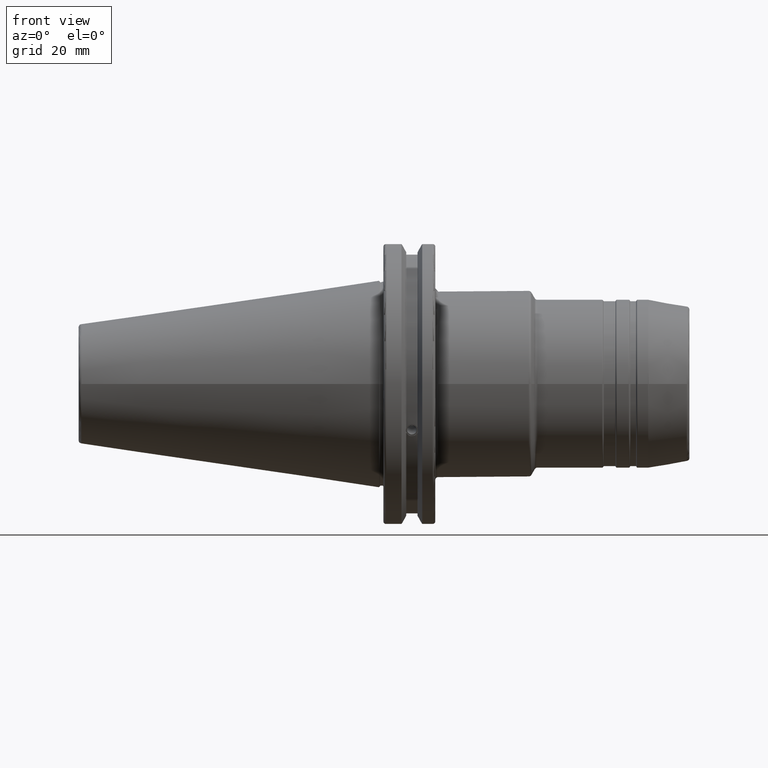
[diagram: clean part render]
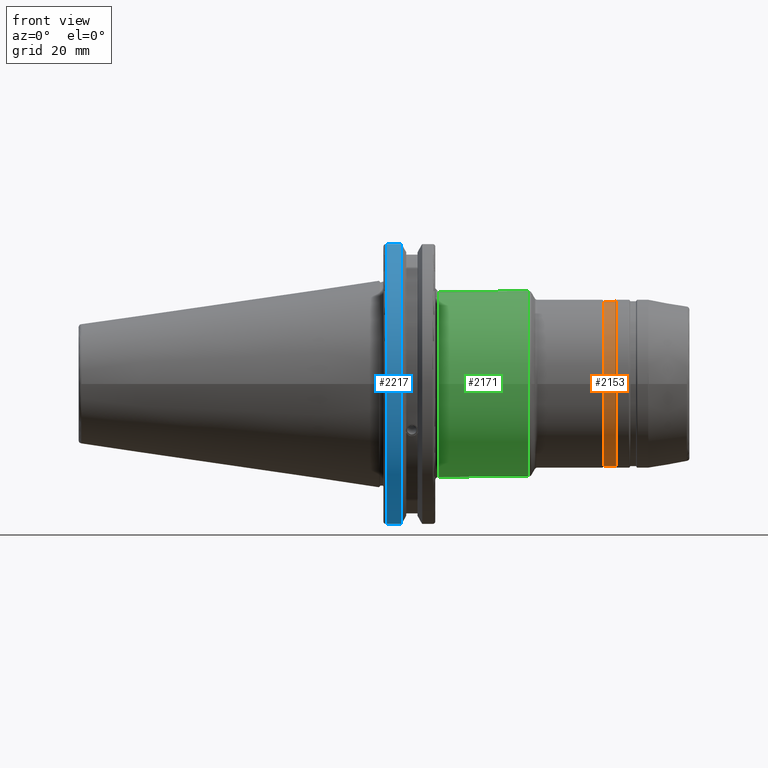
[diagram: same view with three faces highlighted in distinct colors, each labeled with its STEP entity id]
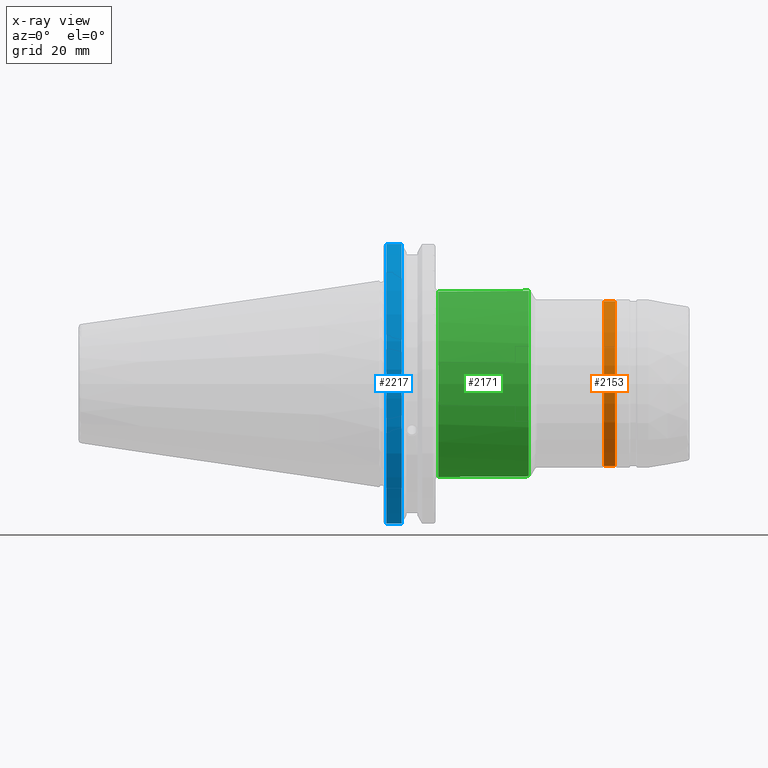
[diagram: x-ray of the same camera — body ghosted, the three highlighted faces saturated]
A machine part, front view with three faces highlighted in distinct colors.
The next image is the same camera in x-ray (body ghosted, the three faces saturated) — at least one of them is partly hidden behind the body in this view.
Their STEP definitions:

[orange] entity #2153 — the highlighted cylindrical surface (bore or boss wall) has radius 28 mm, axis along (1, 0, 0).
#154=LINE('',#3342,#260);
#260=VECTOR('',#2648,28.);
#364=CYLINDRICAL_SURFACE('',#2310,28.);
#402=FACE_OUTER_BOUND('',#512,.T.);
#512=EDGE_LOOP('',(#1472,#1473,#1474,#1475,#1476,#1477,#1478,#1479));
#654=CIRCLE('',#2303,28.);
#659=CIRCLE('',#2308,28.);
#660=CIRCLE('',#2309,28.);
#661=CIRCLE('',#2311,28.);
#662=CIRCLE('',#2312,28.);
#663=CIRCLE('',#2313,28.);
#838=VERTEX_POINT('',#3327);
#839=VERTEX_POINT('',#3328);
#843=VERTEX_POINT('',#3337);
#844=VERTEX_POINT('',#3341);
#845=VERTEX_POINT('',#3343);
#846=VERTEX_POINT('',#3345);
#1095=EDGE_CURVE('',#838,#839,#654,.T.);
#1100=EDGE_CURVE('',#839,#843,#659,.T.);
#1101=EDGE_CURVE('',#843,#838,#660,.T.);
#1102=EDGE_CURVE('',#843,#844,#154,.T.);
#1103=EDGE_CURVE('',#845,#844,#661,.T.);
#1104=EDGE_CURVE('',#846,#845,#662,.T.);
#1105=EDGE_CURVE('',#844,#846,#663,.T.);
#1472=ORIENTED_EDGE('',*,*,#1095,.F.);
#1473=ORIENTED_EDGE('',*,*,#1101,.F.);
#1474=ORIENTED_EDGE('',*,*,#1102,.T.);
#1475=ORIENTED_EDGE('',*,*,#1103,.F.);
#1476=ORIENTED_EDGE('',*,*,#1104,.F.);
#1477=ORIENTED_EDGE('',*,*,#1105,.F.);
#1478=ORIENTED_EDGE('',*,*,#1102,.F.);
#1479=ORIENTED_EDGE('',*,*,#1100,.F.);
#2153=ADVANCED_FACE('',(#402),#364,.T.);
#2303=AXIS2_PLACEMENT_3D('',#3329,#2632,#2633);
#2308=AXIS2_PLACEMENT_3D('',#3338,#2642,#2643);
#2309=AXIS2_PLACEMENT_3D('',#3339,#2644,#2645);
#2310=AXIS2_PLACEMENT_3D('',#3340,#2646,#2647);
#2311=AXIS2_PLACEMENT_3D('',#3344,#2649,#2650);
#2312=AXIS2_PLACEMENT_3D('',#3346,#2651,#2652);
#2313=AXIS2_PLACEMENT_3D('',#3347,#2653,#2654);
#2632=DIRECTION('center_axis',(1.,0.,0.));
#2633=DIRECTION('ref_axis',(0.,-1.,1.83697019872103E-16));
#2642=DIRECTION('center_axis',(1.,0.,0.));
#2643=DIRECTION('ref_axis',(0.,-1.,1.83697019872103E-16));
#2644=DIRECTION('center_axis',(1.,0.,0.));
#2645=DIRECTION('ref_axis',(0.,-1.,1.83697019872103E-16));
#2646=DIRECTION('center_axis',(1.,0.,0.));
#2647=DIRECTION('ref_axis',(0.,1.,0.));
#2648=DIRECTION('',(-1.,0.,0.));
#2649=DIRECTION('center_axis',(-1.,0.,0.));
#2650=DIRECTION('ref_axis',(0.,-1.,1.83697019872103E-16));
#2651=DIRECTION('center_axis',(-1.,0.,0.));
#2652=DIRECTION('ref_axis',(0.,-1.,1.83697019872103E-16));
#2653=DIRECTION('center_axis',(-1.,0.,0.));
#2654=DIRECTION('ref_axis',(0.,-1.,1.83697019872103E-16));
#3327=CARTESIAN_POINT('',(79.8845299461621,28.,-1.7145055188063E-15));
#3328=CARTESIAN_POINT('',(79.8845299461621,-3.42901103761259E-15,28.));
#3329=CARTESIAN_POINT('Origin',(79.8845299461621,0.,0.));
#3337=CARTESIAN_POINT('',(79.8845299461621,-28.,-3.42901103761259E-15));
#3338=CARTESIAN_POINT('Origin',(79.8845299461621,0.,0.));
#3339=CARTESIAN_POINT('Origin',(79.8845299461621,0.,0.));
#3340=CARTESIAN_POINT('Origin',(78.,0.,0.));
#3341=CARTESIAN_POINT('',(76.1154700538379,-28.,-3.42901103761259E-15));
#3342=CARTESIAN_POINT('',(78.,-28.,-3.42901103761259E-15));
#3343=CARTESIAN_POINT('',(76.1154700538379,28.,-8.57252759403147E-15));
#3344=CARTESIAN_POINT('Origin',(76.1154700538379,0.,0.));
#3345=CARTESIAN_POINT('',(76.1154700538379,-3.42901103761259E-15,28.));
#3346=CARTESIAN_POINT('Origin',(76.1154700538379,0.,0.));
#3347=CARTESIAN_POINT('Origin',(76.1154700538379,0.,0.));

[blue] entity #2217 — the highlighted cylindrical surface (partial cylindrical patch) has radius 49.2125 mm, axis along (1, 0, 0).
#224=LINE('',#4279,#330);
#225=LINE('',#4285,#331);
#330=VECTOR('',#3090,10.);
#331=VECTOR('',#3093,10.);
#387=CYLINDRICAL_SURFACE('',#2497,49.2125);
#466=FACE_OUTER_BOUND('',#588,.T.);
#588=EDGE_LOOP('',(#1912,#1913,#1914,#1915));
#780=CIRCLE('',#2494,49.2125);
#782=CIRCLE('',#2498,49.2125);
#1025=VERTEX_POINT('',#4257);
#1026=VERTEX_POINT('',#4266);
#1027=VERTEX_POINT('',#4278);
#1028=VERTEX_POINT('',#4284);
#1341=EDGE_CURVE('',#1025,#1026,#780,.T.);
#1344=EDGE_CURVE('',#1026,#1027,#224,.T.);
#1346=EDGE_CURVE('',#1028,#1025,#225,.T.);
#1347=EDGE_CURVE('',#1027,#1028,#782,.T.);
#1912=ORIENTED_EDGE('',*,*,#1341,.F.);
#1913=ORIENTED_EDGE('',*,*,#1346,.F.);
#1914=ORIENTED_EDGE('',*,*,#1347,.F.);
#1915=ORIENTED_EDGE('',*,*,#1344,.F.);
#2217=ADVANCED_FACE('',(#466),#387,.T.);
#2494=AXIS2_PLACEMENT_3D('',#4267,#3084,#3085);
#2497=AXIS2_PLACEMENT_3D('',#4283,#3091,#3092);
#2498=AXIS2_PLACEMENT_3D('',#4286,#3094,#3095);
#3084=DIRECTION('center_axis',(-1.,0.,0.));
#3085=DIRECTION('ref_axis',(0.,-1.,1.60812264967664E-16));
#3090=DIRECTION('',(1.,0.,0.));
#3091=DIRECTION('center_axis',(1.,0.,0.));
#3092=DIRECTION('ref_axis',(0.,-1.,1.22464679914735E-16));
#3093=DIRECTION('',(-1.,0.,0.));
#3094=DIRECTION('center_axis',(1.,0.,0.));
#3095=DIRECTION('ref_axis',(0.,0.,-1.));
#4257=CARTESIAN_POINT('',(2.5,-13.4317035994433,-47.3440544806494));
#4266=CARTESIAN_POINT('',(2.5,-13.4317035994433,47.3440544806494));
#4267=CARTESIAN_POINT('Origin',(2.5,0.,0.));
#4278=CARTESIAN_POINT('',(7.60799096595127,-13.4317035994433,47.3440544806494));
#4279=CARTESIAN_POINT('',(4.55399548297564,-13.4317035994433,47.3440544806494));
#4283=CARTESIAN_POINT('Origin',(4.55399548297564,0.,0.));
#4284=CARTESIAN_POINT('',(7.60799096595127,-13.4317035994433,-47.3440544806494));
#4285=CARTESIAN_POINT('',(4.55399548297564,-13.4317035994433,-47.3440544806494));
#4286=CARTESIAN_POINT('Origin',(7.60799096595127,0.,0.));

[green] entity #2171 — the highlighted cylindrical surface (bore or boss wall) has radius 31.5 mm, axis along (1, 0, 0).
#162=LINE('',#3475,#268);
#268=VECTOR('',#2808,31.5);
#368=CYLINDRICAL_SURFACE('',#2386,31.5);
#420=FACE_OUTER_BOUND('',#531,.T.);
#531=EDGE_LOOP('',(#1611,#1612,#1613,#1614,#1615,#1616,#1617,#1618));
#716=CIRCLE('',#2383,31.5);
#717=CIRCLE('',#2384,31.5);
#718=CIRCLE('',#2385,31.5);
#719=CIRCLE('',#2387,31.5);
#720=CIRCLE('',#2388,31.5);
#721=CIRCLE('',#2389,31.5);
#890=VERTEX_POINT('',#3466);
#891=VERTEX_POINT('',#3468);
#892=VERTEX_POINT('',#3470);
#893=VERTEX_POINT('',#3474);
#894=VERTEX_POINT('',#3476);
#895=VERTEX_POINT('',#3478);
#1165=EDGE_CURVE('',#890,#891,#716,.T.);
#1166=EDGE_CURVE('',#891,#892,#717,.T.);
#1167=EDGE_CURVE('',#892,#890,#718,.T.);
#1168=EDGE_CURVE('',#891,#893,#162,.T.);
#1169=EDGE_CURVE('',#894,#893,#719,.T.);
#1170=EDGE_CURVE('',#895,#894,#720,.T.);
#1171=EDGE_CURVE('',#893,#895,#721,.T.);
#1611=ORIENTED_EDGE('',*,*,#1167,.F.);
#1612=ORIENTED_EDGE('',*,*,#1166,.F.);
#1613=ORIENTED_EDGE('',*,*,#1168,.T.);
#1614=ORIENTED_EDGE('',*,*,#1169,.F.);
#1615=ORIENTED_EDGE('',*,*,#1170,.F.);
#1616=ORIENTED_EDGE('',*,*,#1171,.F.);
#1617=ORIENTED_EDGE('',*,*,#1168,.F.);
#1618=ORIENTED_EDGE('',*,*,#1165,.F.);
#2171=ADVANCED_FACE('',(#420),#368,.T.);
#2383=AXIS2_PLACEMENT_3D('',#3469,#2800,#2801);
#2384=AXIS2_PLACEMENT_3D('',#3471,#2802,#2803);
#2385=AXIS2_PLACEMENT_3D('',#3472,#2804,#2805);
#2386=AXIS2_PLACEMENT_3D('',#3473,#2806,#2807);
#2387=AXIS2_PLACEMENT_3D('',#3477,#2809,#2810);
#2388=AXIS2_PLACEMENT_3D('',#3479,#2811,#2812);
#2389=AXIS2_PLACEMENT_3D('',#3480,#2813,#2814);
#2800=DIRECTION('center_axis',(1.,0.,0.));
#2801=DIRECTION('ref_axis',(0.,-1.,1.83697019872103E-16));
#2802=DIRECTION('center_axis',(1.,0.,0.));
#2803=DIRECTION('ref_axis',(0.,-1.,1.83697019872103E-16));
#2804=DIRECTION('center_axis',(1.,0.,0.));
#2805=DIRECTION('ref_axis',(0.,-1.,1.83697019872103E-16));
#2806=DIRECTION('center_axis',(1.,0.,0.));
#2807=DIRECTION('ref_axis',(0.,1.,0.));
#2808=DIRECTION('',(-1.,0.,0.));
#2809=DIRECTION('center_axis',(-1.,0.,0.));
#2810=DIRECTION('ref_axis',(0.,-1.,-1.22464679914735E-16));
#2811=DIRECTION('center_axis',(-1.,0.,0.));
#2812=DIRECTION('ref_axis',(0.,-1.,-1.22464679914735E-16));
#2813=DIRECTION('center_axis',(-1.,0.,0.));
#2814=DIRECTION('ref_axis',(0.,-1.,-1.22464679914735E-16));
#3466=CARTESIAN_POINT('',(50.6905989232415,-3.85763741731416E-15,31.5));
#3468=CARTESIAN_POINT('',(50.6905989232415,-31.5,-3.85763741731416E-15));
#3469=CARTESIAN_POINT('Origin',(50.6905989232415,0.,0.));
#3470=CARTESIAN_POINT('',(50.6905989232415,31.5,-1.92881870865708E-15));
#3471=CARTESIAN_POINT('Origin',(50.6905989232415,0.,0.));
#3472=CARTESIAN_POINT('Origin',(50.6905989232415,0.,0.));
#3473=CARTESIAN_POINT('Origin',(35.1589745962156,0.,0.));
#3474=CARTESIAN_POINT('',(20.05,-31.5,-3.85763741731416E-15));
#3475=CARTESIAN_POINT('',(35.1589745962156,-31.5,-3.85763741731416E-15));
#3476=CARTESIAN_POINT('',(20.05,-3.85763741731416E-15,-31.5));
#3477=CARTESIAN_POINT('Origin',(20.05,0.,0.));
#3478=CARTESIAN_POINT('',(20.05,31.5,0.));
#3479=CARTESIAN_POINT('Origin',(20.05,0.,0.));
#3480=CARTESIAN_POINT('Origin',(20.05,0.,0.));